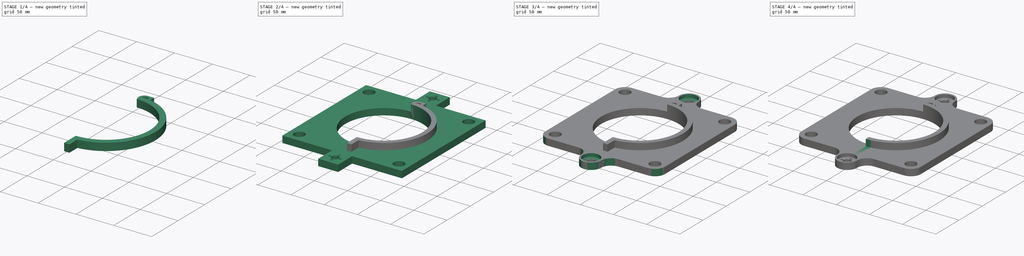
[diagram: build sequence overview — one tinted view per stage of 4, left to right]
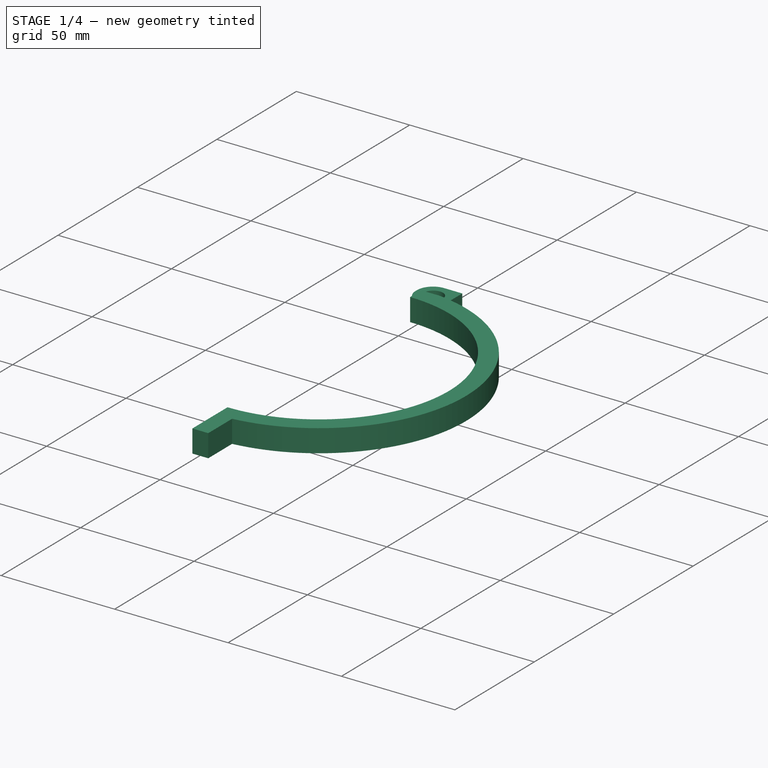
[diagram: stage 1 of 4 — iso view after this stage's code; geometry added in this stage tinted green]
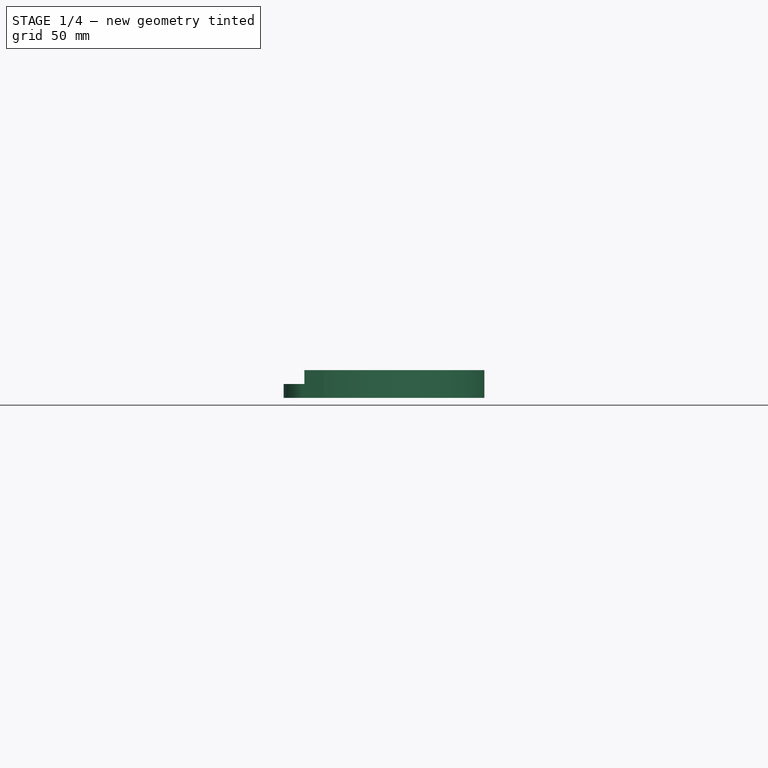
[diagram: stage 1 of 4 — front view after this stage's code; geometry added in this stage tinted green]
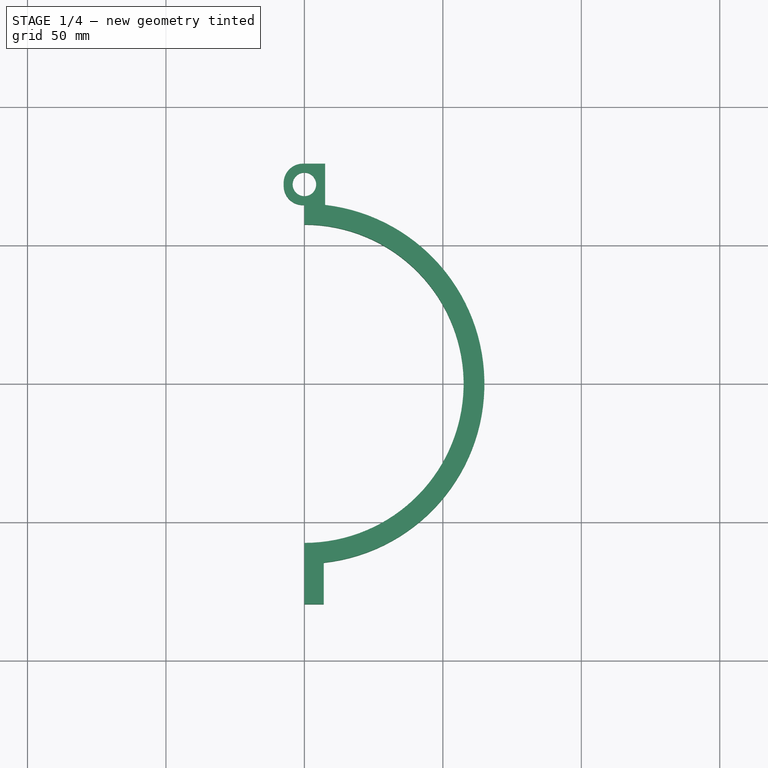
[diagram: stage 1 of 4 — top view after this stage's code; geometry added in this stage tinted green]
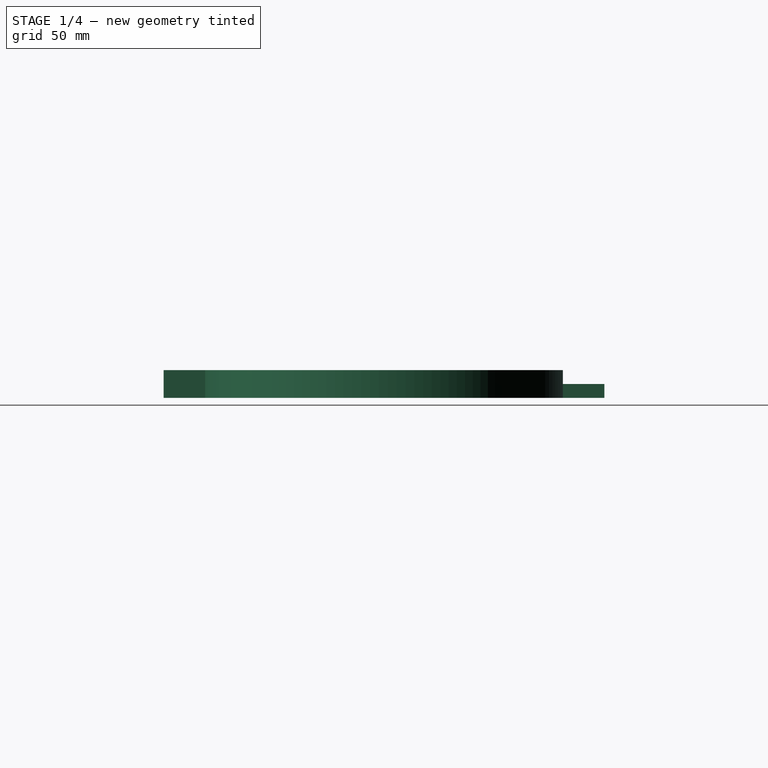
[diagram: stage 1 of 4 — right view after this stage's code; geometry added in this stage tinted green]
FCSTD DOCUMENT  (FreeCAD 1.0R39109 (Git))
Label: close_winds2.1
License: All rights reserved
LicenseURL: https://en.wikipedia.org/wiki/All_rights_reserved
objects: Sketcher::SketchObject×7, PartDesign::Pocket×5, PartDesign::Pad×3, PartDesign::Fillet×3, PartDesign::Body×1
note: 48 computed .brp shape members not serialized (recipe doc carries the construction recipe); baked Part::Feature solids carry a one-line shape summary decoded from their .brp

FEATURE [Sketcher::SketchObject] Sketch
  ArcFitTolerance = 1e-06
  AttachmentSupport = -> [XY_Plane]
  FullyConstrained = true
  MakeInternals = false
  MapMode = 5
  sketch-geometry (11):
    g0: ArcOfCircle CenterX=0 CenterY=0 CenterZ=0 NormalX=0 NormalY=0 NormalZ=1 AngleXU=0 Radius=57.5 StartAngle=4.71239 EndAngle=7.85398
    g1: ArcOfCircle CenterX=0 CenterY=0 CenterZ=0 NormalX=0 NormalY=0 NormalZ=1 AngleXU=0 Radius=65 StartAngle=4.82029 EndAngle=7.73834
    g2: LineSegment StartX=7.5 StartY=64.5659 StartZ=0 EndX=7.5 EndY=79.5659 EndZ=0
    g3: LineSegment StartX=7.5 StartY=79.5659 StartZ=0 EndX=-7.5 EndY=79.5659 EndZ=0
    g4: Circle CenterX=0 CenterY=72.0659 CenterZ=0 NormalX=0 NormalY=0 NormalZ=1 AngleXU=0 Radius=4.25
    g5: LineSegment StartX=-7.5 StartY=79.5659 StartZ=0 EndX=-7.5 EndY=64.5659 EndZ=0
    g6: LineSegment StartX=-7.5 StartY=64.5659 StartZ=0 EndX=0 EndY=64.5659 EndZ=0
    g7: LineSegment StartX=0 StartY=64.5659 StartZ=0 EndX=0 EndY=57.5 EndZ=0
    g8: LineSegment StartX=7 StartY=-64.622 StartZ=0 EndX=7 EndY=-79.622 EndZ=0
    g9: LineSegment StartX=7 StartY=-79.622 StartZ=0 EndX=0 EndY=-79.622 EndZ=0
    g10: LineSegment StartX=0 StartY=-79.622 StartZ=0 EndX=-1.06e-14 EndY=-57.5 EndZ=0
  constraints (33):
    c: Coincident(g0,g-1)
    c: PointOnObject(g0,g-2)
    c: PointOnObject(g0,g-2)
    c: Radius(g0) = 57.5
    c: Coincident(g1,g0)
    c: Radius(g1) = 65
    c: Coincident(g2,g1)
    c: Vertical(g2)
    c: Coincident(g3,g2)
    c: Horizontal(g3)
    c: Diameter(g4) = 8.5
    c: Equal(g2,g3)
    c: DistanceY(g2,g2) = 15
    c: DistanceY(g4,g2) = 7.5
    c: Coincident(g3,g5)
    c: Vertical(g5)
    c: DistanceX(g3,g4) = 7.5
    c: Vertical(g4,g0)
    c: Coincident(g5,g6)
    c: PointOnObject(g6,g-2)
    c: Horizontal(g6)
    c: Coincident(g6,g7)
    c: Coincident(g7,g0)
    c: Equal(g2,g5)
    c: Vertical(g8)
    c: Coincident(g8,g9)
    c: PointOnObject(g9,g-2)
    c: Coincident(g1,g8)
    c: Coincident(g10,g9)
    c: Coincident(g10,g0)
    c: Horizontal(g9)
    c: DistanceY(g8,g8) = 15
    c: DistanceX(g9,g9) = 7
FEATURE [PartDesign::Pad] Pad
  Direction = (0,0,1)
  Length = 10
  Length2 = 10
  Profile = -> Sketch
  ReferenceAxis = -> Sketch [N_Axis]
  Refine = true
  Suppressed = false
  Type = 0
FEATURE [Sketcher::SketchObject] Sketch001
  ArcFitTolerance = 1e-06
  AttachmentSupport = -> [Pad]
  FullyConstrained = true
  MakeInternals = false
  MapMode = 5
  Placement = pos=(0,0,10) rot=(0,0,1;0rad)
  sketch-geometry (4):
    g0: LineSegment StartX=-8.5 StartY=80.5 StartZ=0 EndX=-8.5 EndY=64.5 EndZ=0
    g1: LineSegment StartX=-8.5 StartY=64.5 StartZ=0 EndX=7.5 EndY=64.5 EndZ=0
    g2: LineSegment StartX=7.5 StartY=64.5 StartZ=0 EndX=7.5 EndY=80.5 EndZ=0
    g3: LineSegment StartX=7.5 StartY=80.5 StartZ=0 EndX=-8.5 EndY=80.5 EndZ=0
  constraints (12):
    c: Coincident(g0,g1)
    c: Coincident(g1,g2)
    c: Coincident(g2,g3)
    c: Coincident(g3,g0)
    c: Vertical(g0)
    c: Vertical(g2)
    c: Horizontal(g1)
    c: Horizontal(g3)
    c: DistanceY(g-1,g1) = 64.5
    c: DistanceY(g2,g2) = 16
    c: Equal(g3,g2)
    c: DistanceX(g-1,g1) = 7.5
FEATURE [PartDesign::Pocket] Pocket
  BaseFeature = -> Pad
  Direction = (0,0,-1)
  Length = 5
  Length2 = 5
  Profile = -> Sketch001
  ReferenceAxis = -> Sketch001 [N_Axis]
  Refine = true
  Suppressed = false
  Type = 0
FEATURE [PartDesign::Fillet] Fillet
  Base = -> Pocket [Edge35,Edge37]
  BaseFeature = -> Pocket
  Radius = 7
  Refine = true
  SupportTransform = false
  Suppressed = false
  UseAllEdges = false
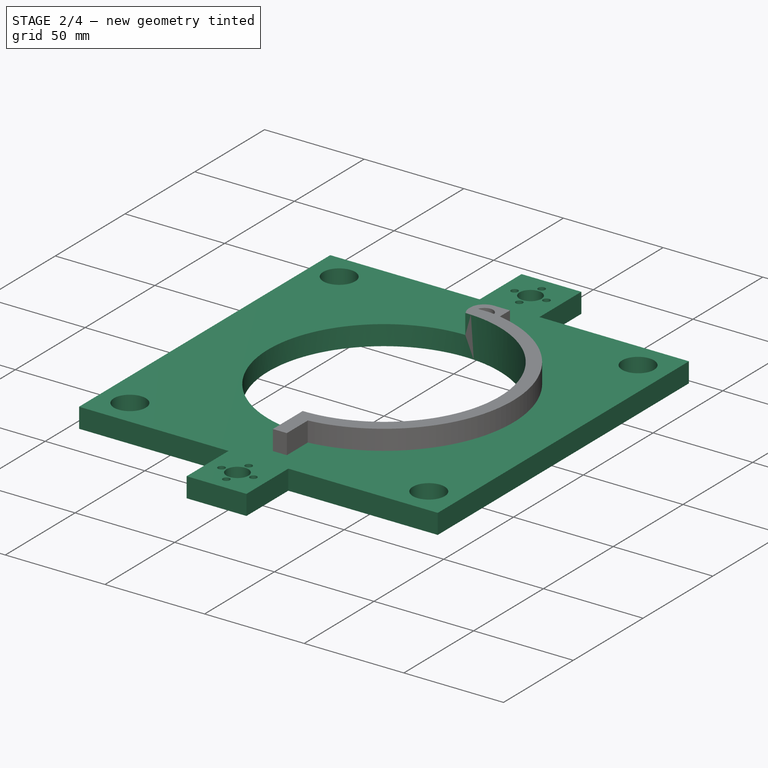
[diagram: stage 2 of 4 — iso view after this stage's code; geometry added in this stage tinted green]
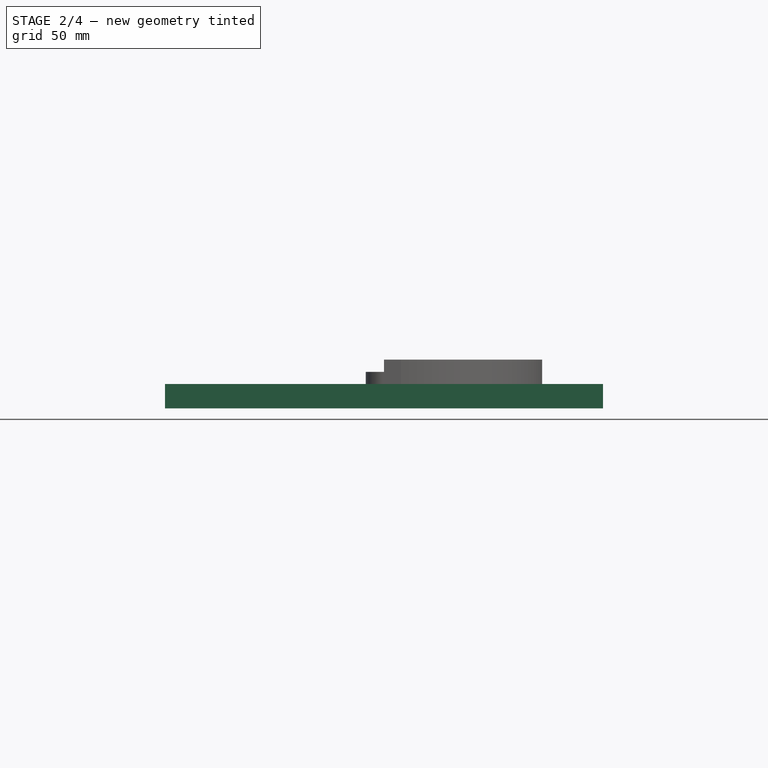
[diagram: stage 2 of 4 — front view after this stage's code; geometry added in this stage tinted green]
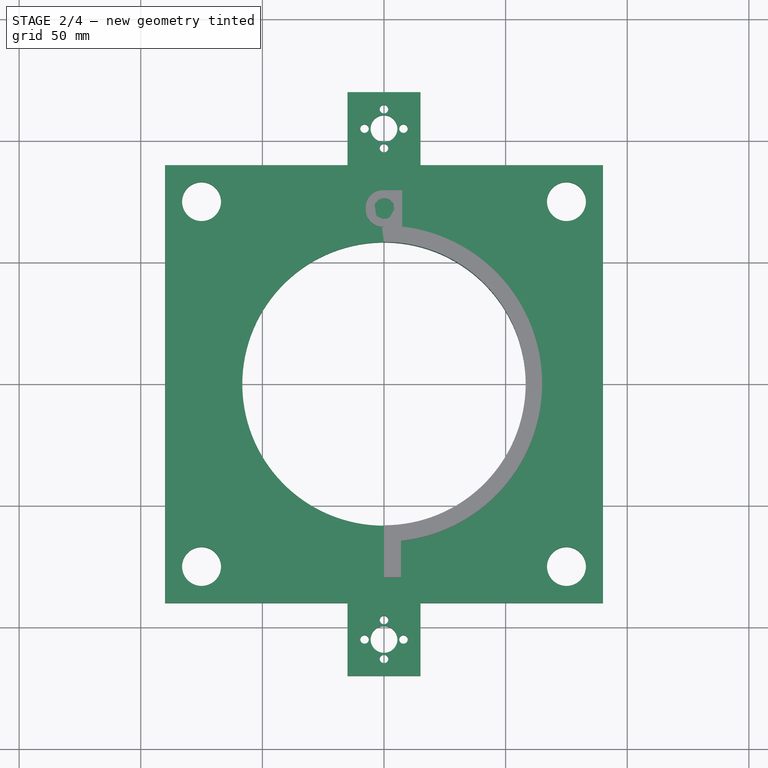
[diagram: stage 2 of 4 — top view after this stage's code; geometry added in this stage tinted green]
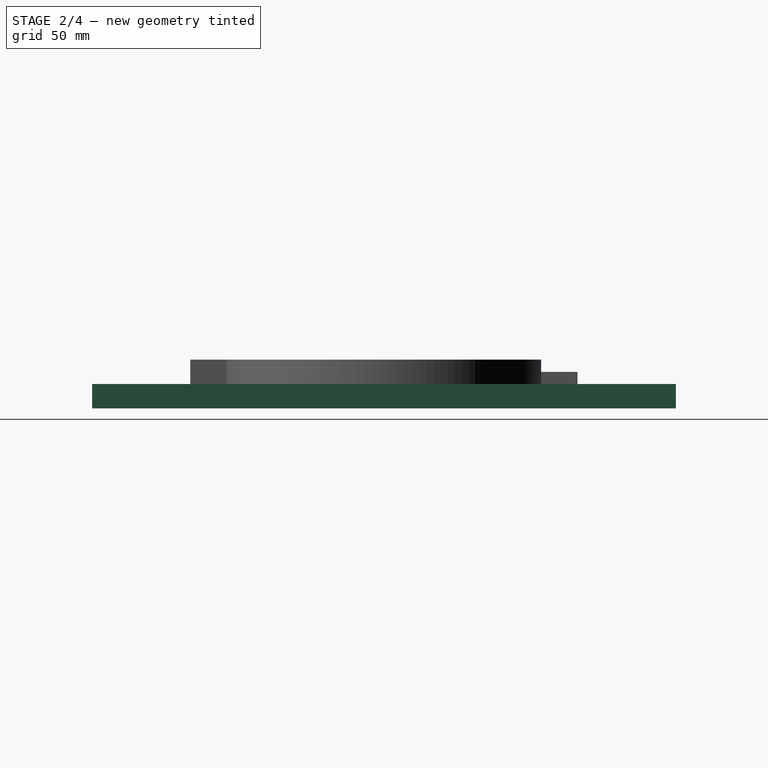
[diagram: stage 2 of 4 — right view after this stage's code; geometry added in this stage tinted green]
FEATURE [Sketcher::SketchObject] Sketch002
  ArcFitTolerance = 1e-06
  AttachmentSupport = -> [XY_Plane]
  FullyConstrained = true
  MakeInternals = false
  MapMode = 5
  sketch-geometry (13):
    g0: LineSegment StartX=90 StartY=-90 StartZ=0 EndX=90 EndY=90 EndZ=0
    g1: LineSegment StartX=90 StartY=90 StartZ=0 EndX=-90 EndY=90 EndZ=0
    g2: LineSegment StartX=-90 StartY=90 StartZ=0 EndX=-90 EndY=-90 EndZ=0
    g3: LineSegment StartX=-90 StartY=-90 StartZ=0 EndX=90 EndY=-90 EndZ=0
    g4: Circle CenterX=0 CenterY=0 CenterZ=0 NormalX=0 NormalY=0 NormalZ=1 AngleXU=0 Radius=57.5
    g5: LineSegment [constr] StartX=75 StartY=-75 StartZ=0 EndX=75 EndY=75 EndZ=0
    g6: LineSegment [constr] StartX=75 StartY=75 StartZ=0 EndX=-75 EndY=75 EndZ=0
    g7: LineSegment [constr] StartX=-75 StartY=75 StartZ=0 EndX=-75 EndY=-75 EndZ=0
    g8: LineSegment [constr] StartX=-75 StartY=-75 StartZ=0 EndX=75 EndY=-75 EndZ=0
    g9: Circle CenterX=75 CenterY=-75 CenterZ=0 NormalX=0 NormalY=0 NormalZ=1 AngleXU=0 Radius=8
    g10: Circle CenterX=75 CenterY=75 CenterZ=0 NormalX=0 NormalY=0 NormalZ=1 AngleXU=0 Radius=8
    g11: Circle CenterX=-75 CenterY=75 CenterZ=0 NormalX=0 NormalY=0 NormalZ=1 AngleXU=0 Radius=8
    g12: Circle CenterX=-75 CenterY=-75 CenterZ=0 NormalX=0 NormalY=0 NormalZ=1 AngleXU=0 Radius=8
  constraints (34):
    c: Coincident(g0,g1)
    c: Coincident(g1,g2)
    c: Coincident(g2,g3)
    c: Coincident(g3,g0)
    c: Vertical(g0)
    c: Vertical(g2)
    c: Horizontal(g1)
    c: Horizontal(g3)
    c: Coincident(g4,g-1)
    c: Diameter(g4) = 115
    c: Equal(g1,g0)
    c: DistanceY(g0,g0) = 180
    c: DistanceX(g4,g0) = 90
    c: DistanceY(g-1,g0) = 90
    c: Coincident(g5,g6)
    c: Coincident(g6,g7)
    c: Coincident(g7,g8)
    c: Coincident(g8,g5)
    c: Vertical(g5)
    c: Vertical(g7)
    c: Horizontal(g6)
    c: Horizontal(g8)
    c: Equal(g9,g12)
    c: Equal(g12,g11)
    c: Equal(g11,g10)
    c: Diameter(g10) = 16
    c: Coincident(g9,g5)
    c: Coincident(g7,g12)
    c: Coincident(g5,g10)
    c: Coincident(g6,g11)
    c: DistanceY(g5,g5) = 150
    c: Equal(g6,g5)
    c: DistanceY(g5,g-1) = 75
    c: DistanceX(g-1,g5) = 75
FEATURE [PartDesign::Pad] Pad001
  BaseFeature = -> Fillet
  Direction = (0,0,1)
  Length = 10
  Length2 = 10
  Profile = -> Sketch002
  ReferenceAxis = -> Sketch002 [N_Axis]
  Refine = true
  Reversed = true
  Suppressed = false
  Type = 0
FEATURE [Sketcher::SketchObject] Sketch003
  ArcFitTolerance = 1e-06
  AttachmentSupport = -> [Pad001]
  FullyConstrained = true
  MakeInternals = false
  MapMode = 5
  Placement = pos=(0,0,-10) rot=(1,0,0;3.14159rad)
  sketch-geometry (1):
    g0: Circle CenterX=0 CenterY=0 CenterZ=0 NormalX=0 NormalY=0 NormalZ=1 AngleXU=0 Radius=58.25
  constraints (2):
    c: Coincident(g0,g-1)
    c: Diameter(g0) = 116.5
FEATURE [PartDesign::Pocket] Pocket001
  BaseFeature = -> Pad001
  Direction = (0,0,1)
  Length = 5
  Length2 = 5
  Profile = -> Sketch003
  ReferenceAxis = -> Sketch003 [N_Axis]
  Refine = true
  Suppressed = false
  Type = 1
FEATURE [Sketcher::SketchObject] Sketch004
  ArcFitTolerance = 1e-06
  AttachmentSupport = -> [Pocket001]
  FullyConstrained = true
  MakeInternals = false
  MapMode = 5
  sketch-geometry (20):
    g0: LineSegment StartX=-15 StartY=120 StartZ=0 EndX=-15 EndY=90 EndZ=0
    g1: LineSegment StartX=-15 StartY=90 StartZ=0 EndX=15 EndY=90 EndZ=0
    g2: LineSegment StartX=15 StartY=90 StartZ=0 EndX=15 EndY=120 EndZ=0
    g3: LineSegment StartX=15 StartY=120 StartZ=0 EndX=-15 EndY=120 EndZ=0
    g4: LineSegment StartX=-15 StartY=-90 StartZ=0 EndX=-15 EndY=-120 EndZ=0
    g5: LineSegment StartX=-15 StartY=-120 StartZ=0 EndX=15 EndY=-120 EndZ=0
    g6: LineSegment StartX=15 StartY=-120 StartZ=0 EndX=15 EndY=-90 EndZ=0
    g7: LineSegment StartX=15 StartY=-90 StartZ=0 EndX=-15 EndY=-90 EndZ=0
    g8: Circle CenterX=0 CenterY=105 CenterZ=0 NormalX=0 NormalY=0 NormalZ=1 AngleXU=0 Radius=5.5
    g9: Circle [constr] CenterX=0 CenterY=105 CenterZ=0 NormalX=0 NormalY=0 NormalZ=1 AngleXU=0 Radius=8
    g10: Circle CenterX=8 CenterY=105 CenterZ=0 NormalX=0 NormalY=0 NormalZ=1 AngleXU=0 Radius=1.75
    g11: Circle CenterX=0 CenterY=113 CenterZ=0 NormalX=0 NormalY=0 NormalZ=1 AngleXU=0 Radius=1.75
    g12: Circle CenterX=-8 CenterY=105 CenterZ=0 NormalX=0 NormalY=0 NormalZ=1 AngleXU=0 Radius=1.75
    g13: Circle CenterX=0 CenterY=97 CenterZ=0 NormalX=0 NormalY=0 NormalZ=1 AngleXU=0 Radius=1.75
    g14: Circle CenterX=0 CenterY=-105 CenterZ=0 NormalX=0 NormalY=0 NormalZ=1 AngleXU=0 Radius=5.5
    g15: Circle [constr] CenterX=0 CenterY=-105 CenterZ=0 NormalX=0 NormalY=0 NormalZ=1 AngleXU=0 Radius=8
    g16: Circle CenterX=8 CenterY=-105 CenterZ=0 NormalX=0 NormalY=0 NormalZ=1 AngleXU=0 Radius=1.75
    g17: Circle CenterX=0 CenterY=-97 CenterZ=0 NormalX=0 NormalY=0 NormalZ=1 AngleXU=0 Radius=1.75
    g18: Circle CenterX=-8 CenterY=-105 CenterZ=0 NormalX=0 NormalY=0 NormalZ=1 AngleXU=0 Radius=1.75
    g19: Circle CenterX=0 CenterY=-113 CenterZ=0 NormalX=0 NormalY=0 NormalZ=1 AngleXU=0 Radius=1.75
  constraints (58):
    c: Coincident(g0,g1)
    c: Coincident(g1,g2)
    c: Coincident(g2,g3)
    c: Coincident(g3,g0)
    c: Vertical(g0)
    c: Vertical(g2)
    c: Horizontal(g1)
    c: Horizontal(g3)
    c: Coincident(g4,g5)
    c: Coincident(g5,g6)
    c: Coincident(g6,g7)
    c: Coincident(g7,g4)
    c: Vertical(g4)
    c: Vertical(g6)
    c: Horizontal(g5)
    c: Horizontal(g7)
    c: Equal(g6,g5)
    c: Equal(g2,g1)
    c: DistanceX(g3,g3) = 30
    c: DistanceY(g6,g-1) = 90
    c: DistanceX(g-1,g6) = 15
    c: Equal(g7,g1)
    c: DistanceX(g-1,g1) = 15
    c: DistanceY(g-1,g1) = 90
    c: PointOnObject(g8,g-2)
    c: Diameter(g8) = 11
    c: DistanceY(g1,g8) = 15
    c: Diameter(g9) = 16
    c: Coincident(g9,g8)
    c: PointOnObject(g10,g9)
    c: PointOnObject(g11,g9)
    c: PointOnObject(g12,g9)
    c: PointOnObject(g13,g9)
    c: Equal(g12,g11)
    c: Equal(g11,g10)
    c: Equal(g10,g13)
    c: Vertical(g13,g11)
    c: Vertical(g11,g8)
    c: Horizontal(g8,g12)
    c: Horizontal(g8,g10)
    c: Diameter(g10) = 3.5
    c: Diameter(g14) = 11
    c: PointOnObject(g14,g-2)
    c: DistanceY(g14,g6) = 15
    c: Diameter(g15) = 16
    c: Coincident(g15,g14)
    c: PointOnObject(g16,g15)
    c: PointOnObject(g17,g15)
    c: PointOnObject(g18,g15)
    c: PointOnObject(g19,g15)
    c: Horizontal(g18,g16)
    c: Horizontal(g16,g14)
    c: Vertical(g14,g17)
    c: Vertical(g14,g19)
    c: Equal(g18,g17)
    c: Equal(g17,g16)
    c: Equal(g16,g19)
    c: Diameter(g19) = 3.5
FEATURE [PartDesign::Pad] Pad002
  BaseFeature = -> Pocket001
  Direction = (0,0,1)
  Length = 10
  Length2 = 10
  Profile = -> Sketch004
  ReferenceAxis = -> Sketch004 [N_Axis]
  Refine = true
  Reversed = true
  Suppressed = false
  Type = 0
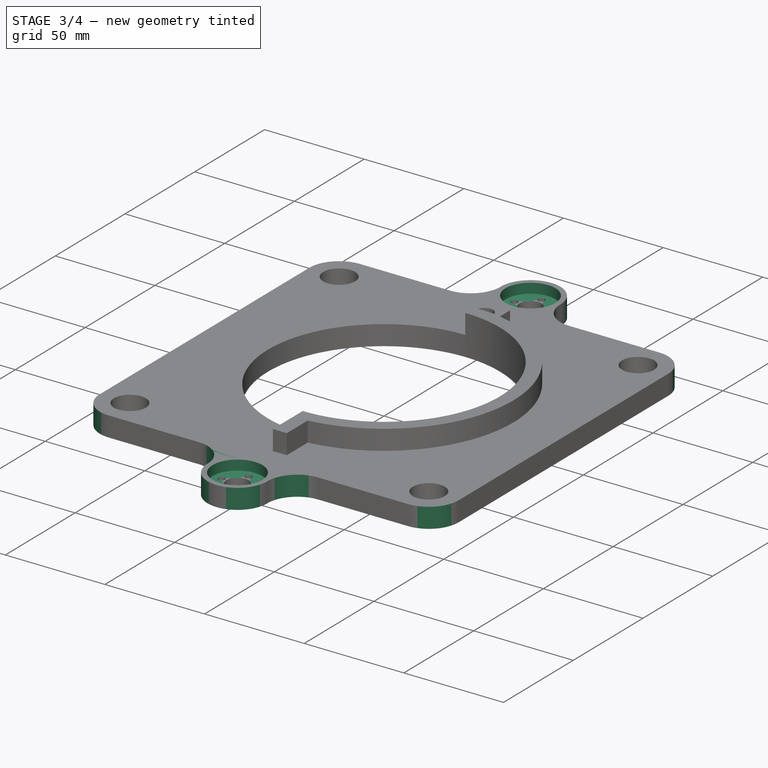
[diagram: stage 3 of 4 — iso view after this stage's code; geometry added in this stage tinted green]
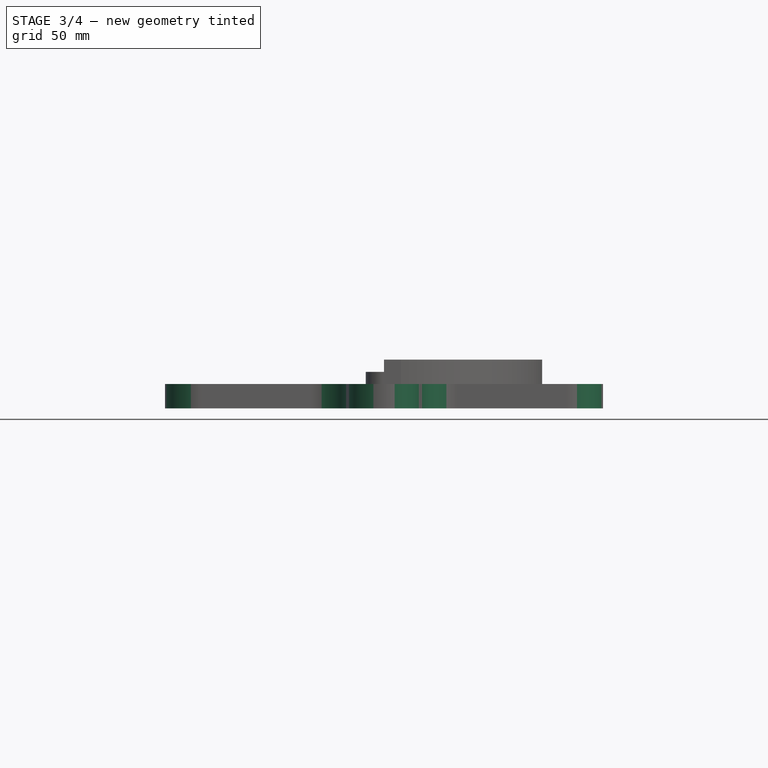
[diagram: stage 3 of 4 — front view after this stage's code; geometry added in this stage tinted green]
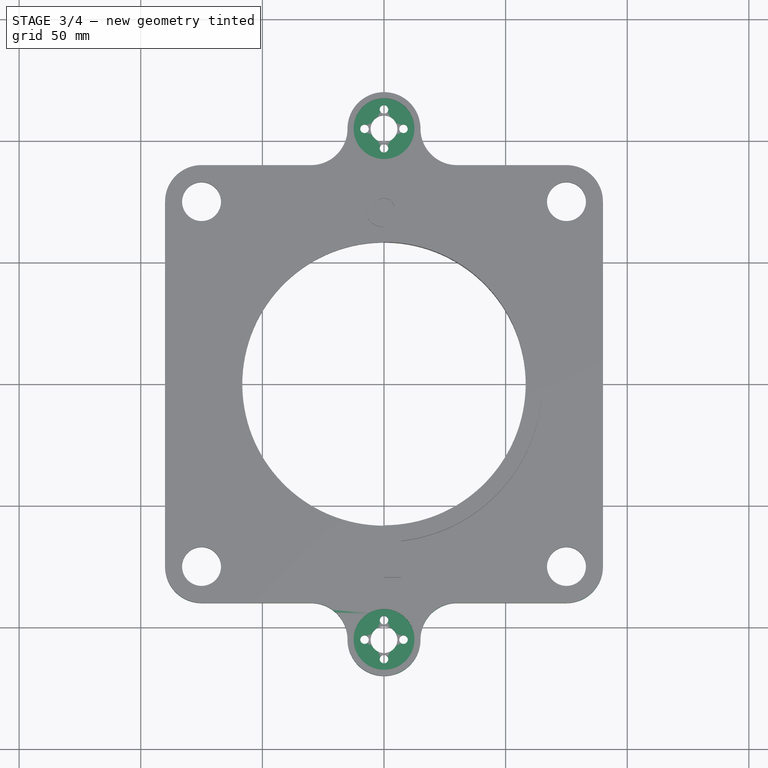
[diagram: stage 3 of 4 — top view after this stage's code; geometry added in this stage tinted green]
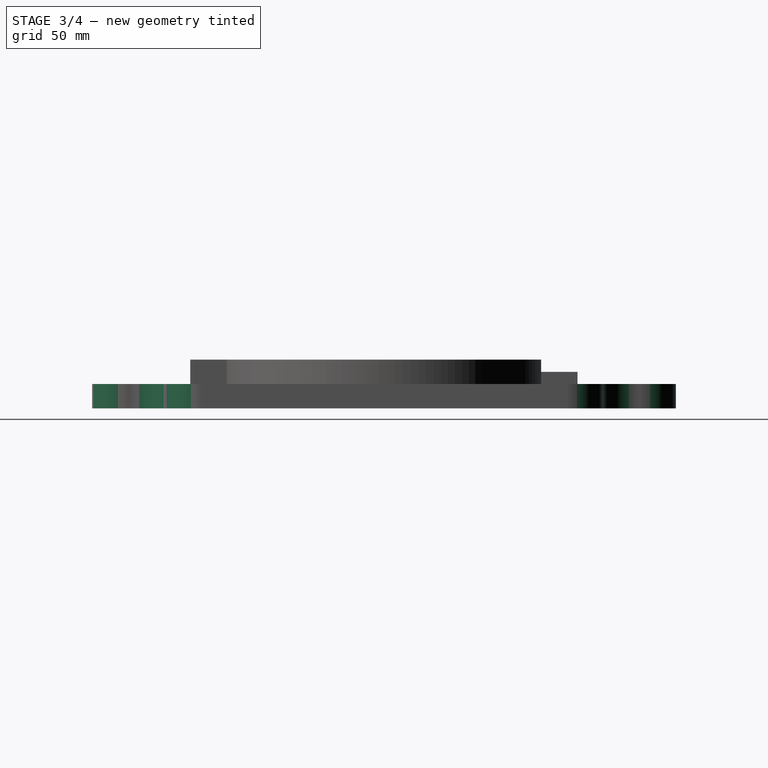
[diagram: stage 3 of 4 — right view after this stage's code; geometry added in this stage tinted green]
FEATURE [Sketcher::SketchObject] Sketch005
  ArcFitTolerance = 1e-06
  AttachmentSupport = -> [Pad002]
  FullyConstrained = true
  MakeInternals = false
  MapMode = 5
  sketch-geometry (2):
    g0: Circle CenterX=0 CenterY=105 CenterZ=0 NormalX=0 NormalY=0 NormalZ=1 AngleXU=0 Radius=12.5
    g1: Circle CenterX=0 CenterY=-105 CenterZ=0 NormalX=0 NormalY=0 NormalZ=1 AngleXU=0 Radius=12.5
  constraints (6):
    c: PointOnObject(g0,g-2)
    c: DistanceY(g-1,g0) = 105
    c: Diameter(g0) = 25
    c: Diameter(g1) = 25
    c: PointOnObject(g1,g-2)
    c: DistanceY(g1,g-1) = 105
FEATURE [PartDesign::Pocket] Pocket002
  BaseFeature = -> Pad002
  Direction = (0,0,-1)
  Length = 5
  Length2 = 5
  Profile = -> Sketch005
  ReferenceAxis = -> Sketch005 [N_Axis]
  Refine = true
  Suppressed = false
  Type = 0
FEATURE [PartDesign::Fillet] Fillet001
  Base = -> Pocket002 [Edge66,Edge68,Edge64,Edge69,Edge67,Edge61,Edge65,Edge4,Edge63,Edge62,Edge34,Edge2]
  BaseFeature = -> Pocket002
  Radius = 14.99
  Refine = true
  SupportTransform = false
  Suppressed = false
  UseAllEdges = false
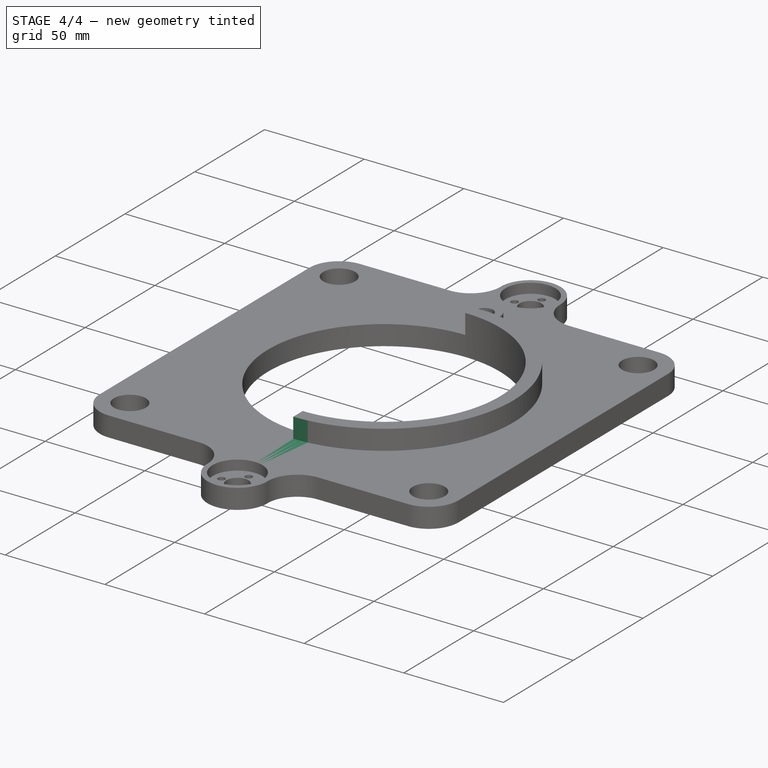
[diagram: stage 4 of 4 — iso view after this stage's code; geometry added in this stage tinted green]
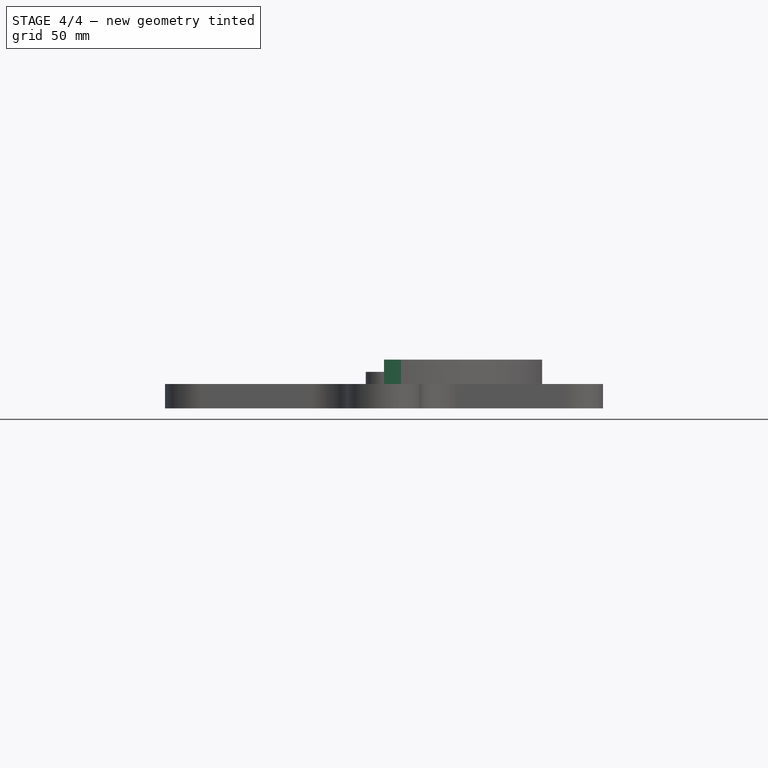
[diagram: stage 4 of 4 — front view after this stage's code; geometry added in this stage tinted green]
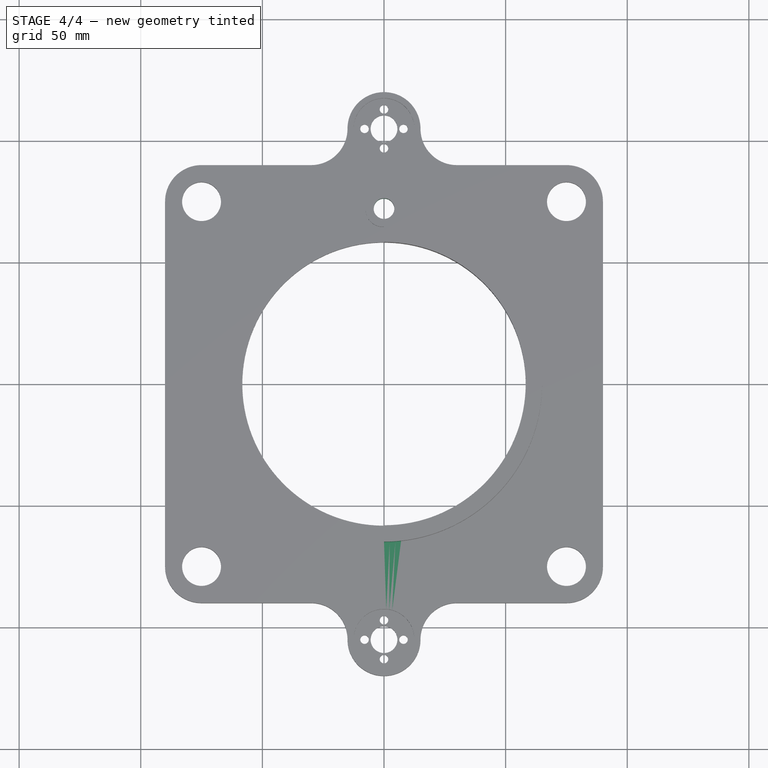
[diagram: stage 4 of 4 — top view after this stage's code; geometry added in this stage tinted green]
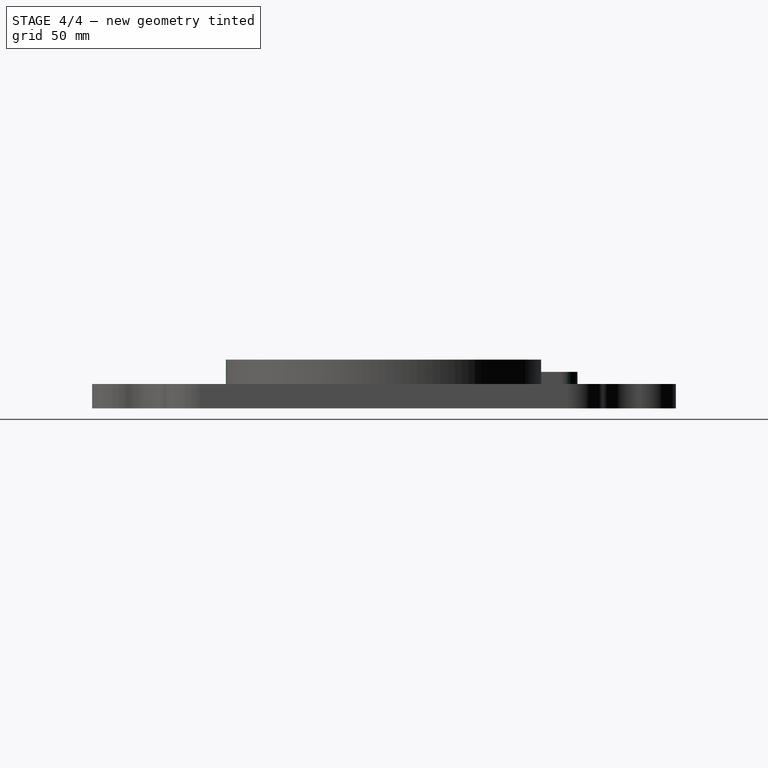
[diagram: stage 4 of 4 — right view after this stage's code; geometry added in this stage tinted green]
FEATURE [PartDesign::Pocket] Pocket003
  BaseFeature = -> Fillet001
  Direction = (0,0,-1)
  Length = 5
  Length2 = 5
  Profile = -> Fillet001 [Face62]
  Refine = true
  Suppressed = false
  Type = 1
FEATURE [Sketcher::SketchObject] Sketch006
  ArcFitTolerance = 1e-06
  AttachmentSupport = -> [Pocket003]
  FullyConstrained = true
  MakeInternals = false
  MapMode = 5
  Placement = pos=(0,0,10) rot=(0,0,1;0rad)
  sketch-geometry (4):
    g0: ArcOfCircle CenterX=0 CenterY=0 CenterZ=0 NormalX=0 NormalY=0 NormalZ=1 AngleXU=0 Radius=65 StartAngle=4.3176 EndAngle=5.10718
    g1: ArcOfCircle CenterX=0 CenterY=0 CenterZ=0 NormalX=0 NormalY=0 NormalZ=1 AngleXU=0 Radius=83 StartAngle=4.40643 EndAngle=5.01834
    g2: LineSegment StartX=25 StartY=-60 StartZ=0 EndX=25 EndY=-79.1454 EndZ=0
    g3: LineSegment StartX=-25 StartY=-60 StartZ=0 EndX=-25 EndY=-79.1454 EndZ=0
  constraints (12):
    c: Coincident(g0,g-1)
    c: Coincident(g1,g0)
    c: Radius(g0) = 65
    c: Coincident(g2,g0)
    c: Coincident(g2,g1)
    c: Coincident(g3,g0)
    c: Coincident(g3,g1)
    c: Vertical(g3)
    c: Vertical(g2)
    c: Horizontal(g0,g0)
    c: Radius(g1) = 83
    c: DistanceY(g0,g-1) = 60
FEATURE [PartDesign::Pocket] Pocket004
  BaseFeature = -> Pocket003
  Direction = (0,0,-1)
  Length = 10
  Length2 = 5
  Profile = -> Sketch006
  ReferenceAxis = -> Sketch006 [N_Axis]
  Refine = true
  Suppressed = false
  Type = 0
FEATURE [PartDesign::Fillet] Fillet002
  Base = -> Pocket004 [Edge116]
  BaseFeature = -> Pocket004
  Radius = 7
  Refine = true
  SupportTransform = false
  Suppressed = false
  UseAllEdges = false
FEATURE [PartDesign::Body] Body
  AllowCompound = false
  Group = -> [Sketch,Pad,Sketch001,Pocket,Fillet,Sketch002,Pad001,Sketch003,Pocket001,Sketch004,Pad002,Sketch005,Pocket002,Fillet001,Pocket003,Sketch006,Pocket004,Fillet002]
  Origin = -> Origin
  Tip = -> Fillet002
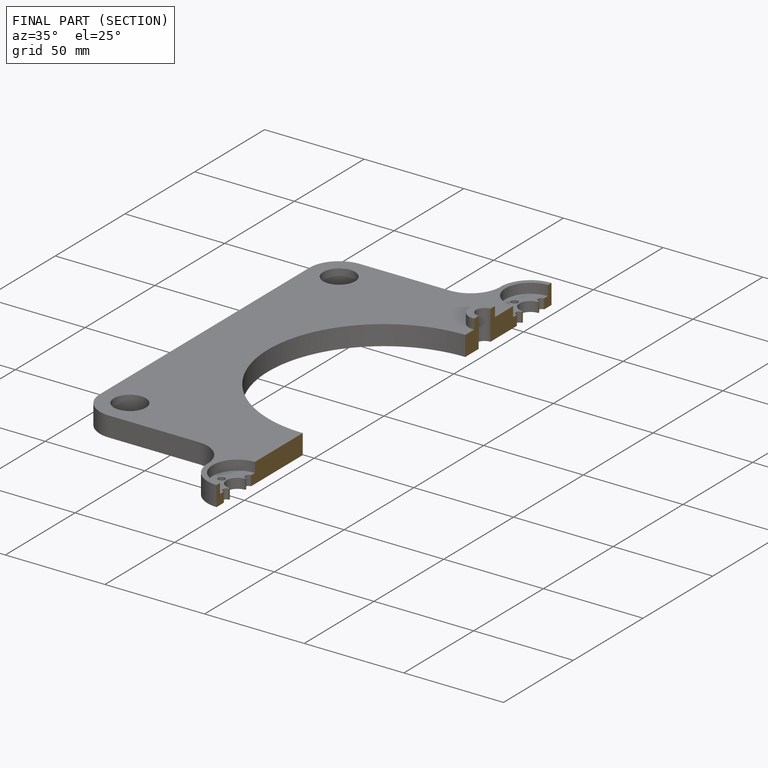
[diagram: finished part — half-section view (interior)]
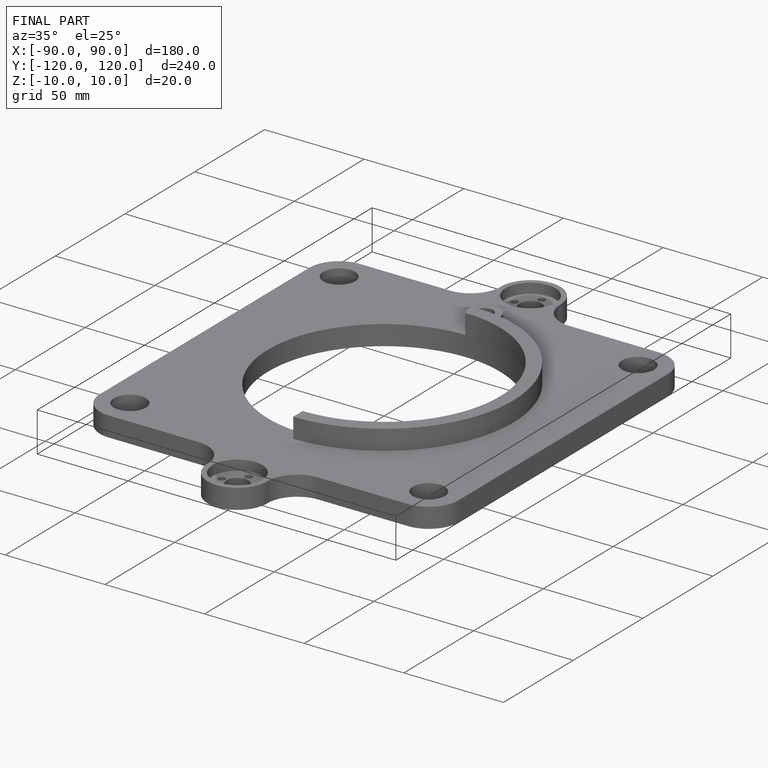
[diagram: finished part — iso view with bounding-box wireframe]
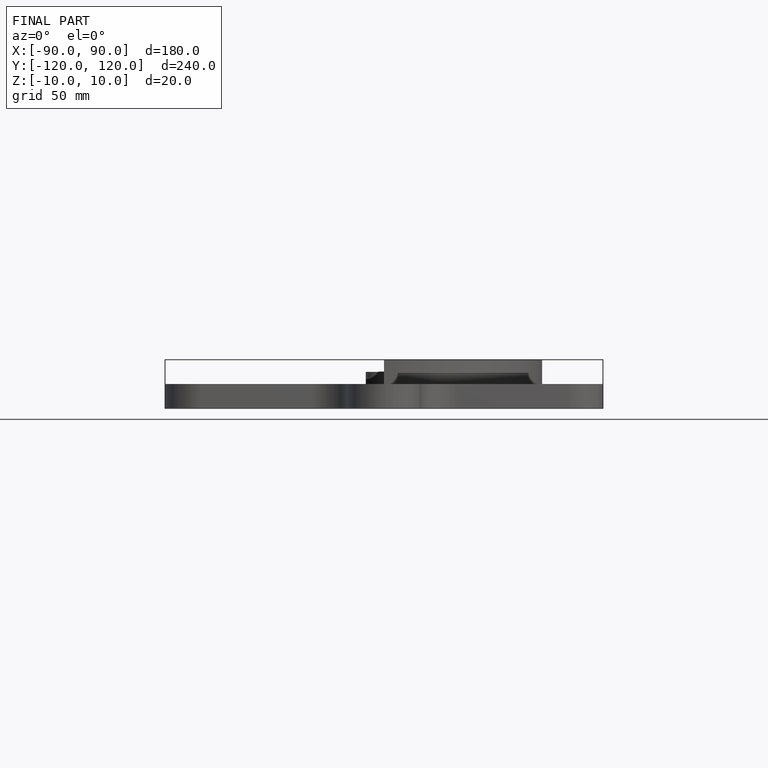
[diagram: finished part — front view with bounding-box wireframe]
